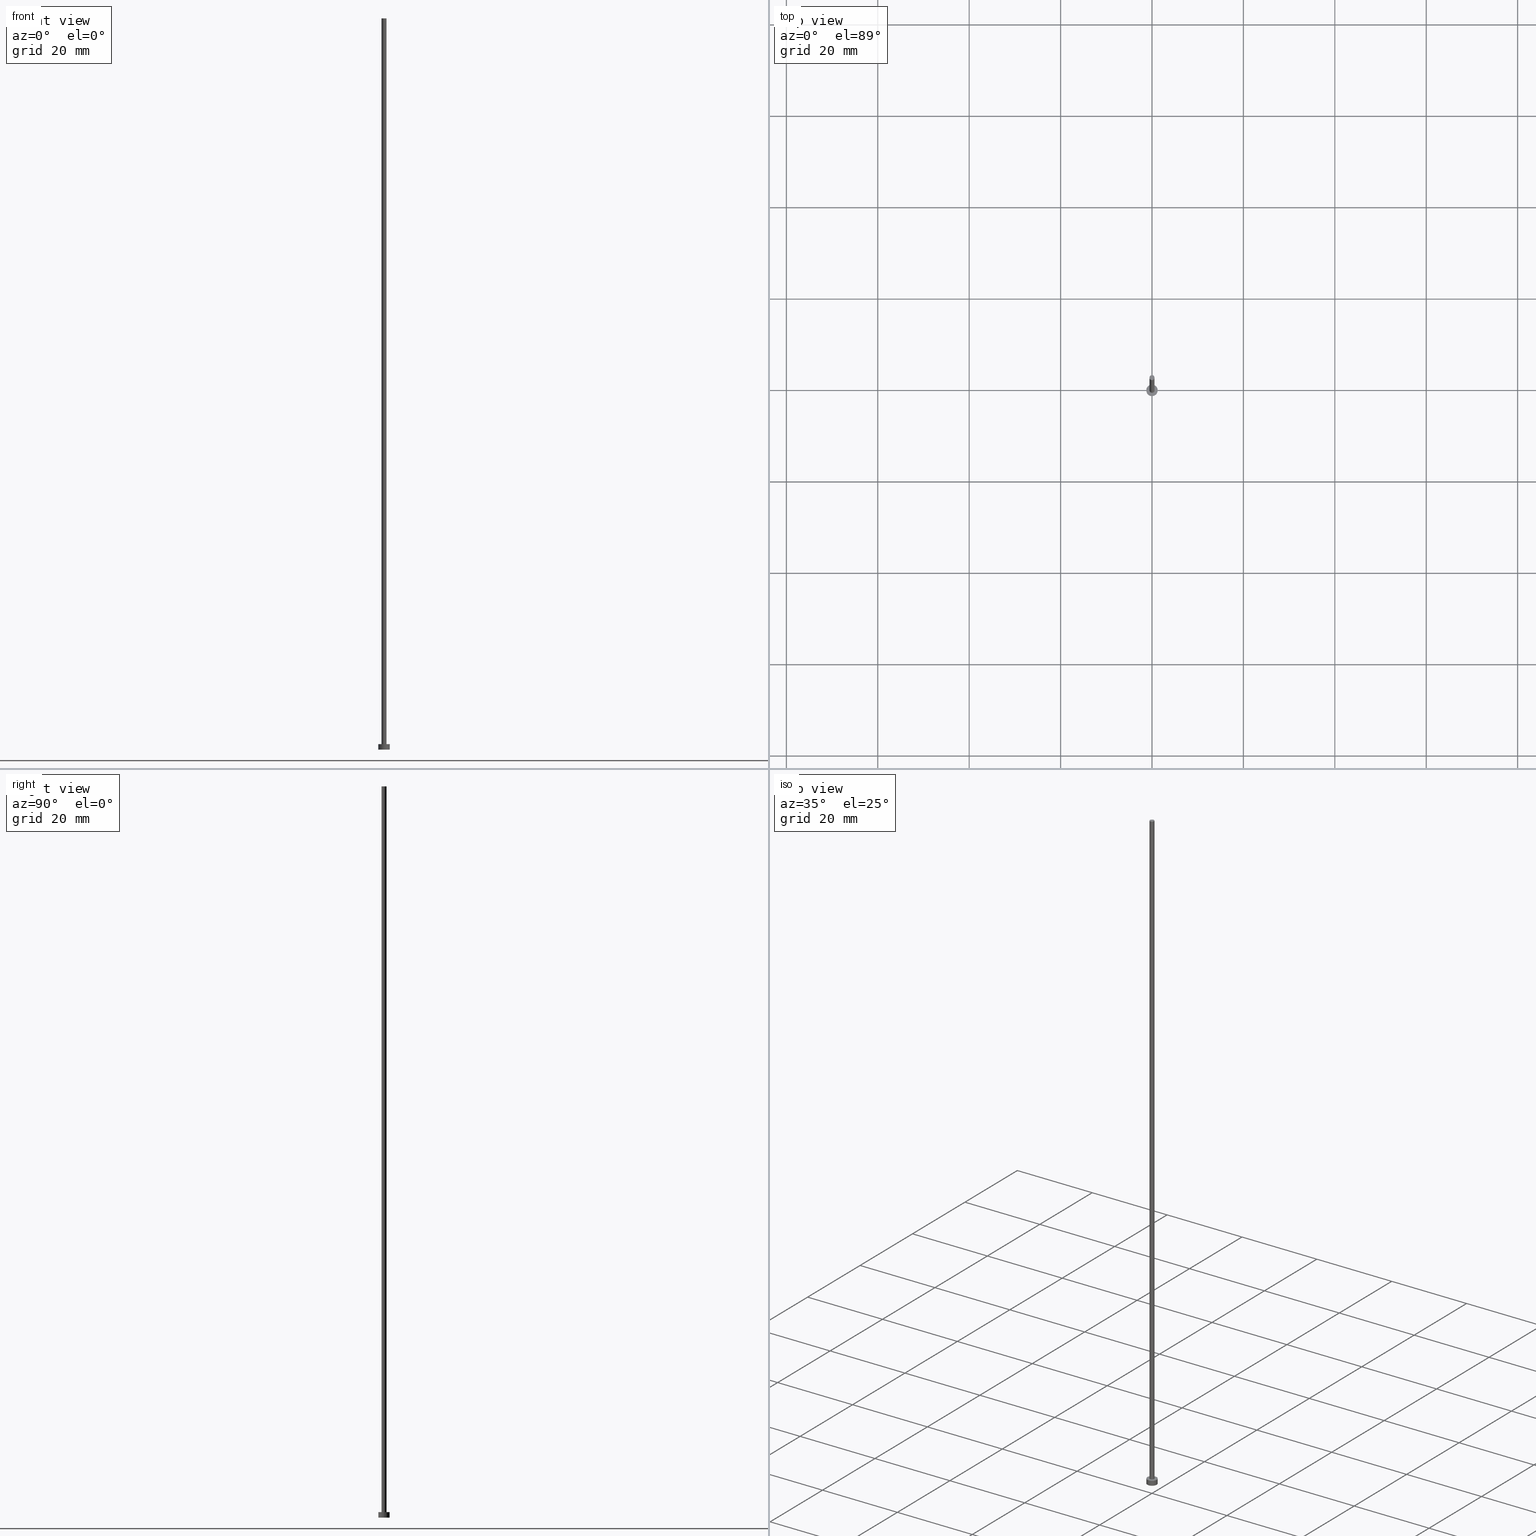
[diagram: canonical four-view strip — front | top / right | iso, engineering-drawing reading convention]
A machine part, canonical four-view strip (front | top / right | iso — engineering-drawing reading convention). The complete STEP part file that produces these views, byte-faithful:
ISO-10303-21;
HEADER;
FILE_DESCRIPTION (( 'STEP AP203' ),
    '1' );
FILE_NAME ('1b36.STEP',
    '2023-02-13T17:27:34',
    ( '' ),
    ( '' ),
    'SwSTEP 2.0',
    'SolidWorks 2019',
    '' );
FILE_SCHEMA (( 'CONFIG_CONTROL_DESIGN' ));
ENDSEC;

DATA;
#1 = EDGE_LOOP ( 'NONE', ( #121, #93, #18, #174 ) ) ;
#2 = DIRECTION ( 'NONE',  ( -1.000000000000000000, 0.000000000000000000, 0.000000000000000000 ) ) ;
#3 = EDGE_CURVE ( 'NONE', #80, #233, #112, .T. ) ;
#4 = CC_DESIGN_DATE_AND_TIME_ASSIGNMENT ( #83, #44, ( #178 ) ) ;
#5 = PERSON_AND_ORGANIZATION ( #51, #86 ) ;
#6 = CC_DESIGN_APPROVAL ( #103, ( #115 ) ) ;
#7 = VECTOR ( 'NONE', #156, 1000.000000000000000 ) ;
#8 = EDGE_CURVE ( 'NONE', #227, #137, #212, .T. ) ;
#9 = CC_DESIGN_PERSON_AND_ORGANIZATION_ASSIGNMENT ( #113, #55, ( #115 ) ) ;
#10 = CARTESIAN_POINT ( 'NONE',  ( -1.250000000000000000, 0.000000000000000000, 1.199999999999999956 ) ) ;
#11 = DATE_AND_TIME ( #150, #77 ) ;
#12 = CC_DESIGN_SECURITY_CLASSIFICATION ( #146, ( #115 ) ) ;
#13 = DIRECTION ( 'NONE',  ( -0.000000000000000000, -0.000000000000000000, -1.000000000000000000 ) ) ;
#14 =( NAMED_UNIT ( * ) PLANE_ANGLE_UNIT ( ) SI_UNIT ( $, .RADIAN. ) );
#15 = PERSON_AND_ORGANIZATION ( #51, #86 ) ;
#16 = DIRECTION ( 'NONE',  ( 0.000000000000000000, 0.000000000000000000, 1.000000000000000000 ) ) ;
#17 = AXIS2_PLACEMENT_3D ( 'NONE', #31, #222, #242 ) ;
#18 = ORIENTED_EDGE ( 'NONE', *, *, #243, .T. ) ;
#19 = COORDINATED_UNIVERSAL_TIME_OFFSET ( 1, 0, .AHEAD. ) ;
#20 = DIRECTION ( 'NONE',  ( 1.000000000000000000, 0.000000000000000000, 0.000000000000000000 ) ) ;
#21 = DIRECTION ( 'NONE',  ( 1.000000000000000000, 0.000000000000000000, 0.000000000000000000 ) ) ;
#22 = ADVANCED_FACE ( 'NONE', ( #134, #102 ), #41, .T. ) ;
#23 = CARTESIAN_POINT ( 'NONE',  ( 0.000000000000000000, 0.000000000000000000, 1.199999999999999956 ) ) ;
#24 = COORDINATED_UNIVERSAL_TIME_OFFSET ( 1, 0, .AHEAD. ) ;
#25 =( GEOMETRIC_REPRESENTATION_CONTEXT ( 3 ) GLOBAL_UNCERTAINTY_ASSIGNED_CONTEXT ( ( #195 ) ) GLOBAL_UNIT_ASSIGNED_CONTEXT ( ( #208, #14, #187 ) ) REPRESENTATION_CONTEXT ( 'NONE', 'WORKASPACE' ) );
#26 = ORIENTED_EDGE ( 'NONE', *, *, #200, .F. ) ;
#27 = DIRECTION ( 'NONE',  ( -1.000000000000000000, 0.000000000000000000, 0.000000000000000000 ) ) ;
#28 = AXIS2_PLACEMENT_3D ( 'NONE', #96, #215, #194 ) ;
#29 = PLANE ( 'NONE',  #165 ) ;
#30 = PRODUCT_DEFINITION_SHAPE ( 'NONE', 'NONE',  #178 ) ;
#31 = CARTESIAN_POINT ( 'NONE',  ( 0.000000000000000000, 0.000000000000000000, 160.0000000000000284 ) ) ;
#32 = CARTESIAN_POINT ( 'NONE',  ( 0.000000000000000000, 0.000000000000000000, 1.199999999999999956 ) ) ;
#33 = DIRECTION ( 'NONE',  ( -0.000000000000000000, -0.000000000000000000, -1.000000000000000000 ) ) ;
#34 = EDGE_LOOP ( 'NONE', ( #159, #114 ) ) ;
#35 = ADVANCED_FACE ( 'NONE', ( #84 ), #98, .T. ) ;
#36 = PERSON_AND_ORGANIZATION ( #51, #86 ) ;
#37 = CC_DESIGN_DATE_AND_TIME_ASSIGNMENT ( #11, #130, ( #146 ) ) ;
#38 = DIRECTION ( 'NONE',  ( 0.000000000000000000, 0.000000000000000000, 1.000000000000000000 ) ) ;
#39 = APPROVAL_ROLE ( '' ) ;
#40 = EDGE_CURVE ( 'NONE', #173, #227, #203, .T. ) ;
#41 = PLANE ( 'NONE',  #28 ) ;
#42 = MANIFOLD_SOLID_BREP ( 'P�idat vysunut�m3', #179 ) ;
#43 = ORIENTED_EDGE ( 'NONE', *, *, #3, .T. ) ;
#44 = DATE_TIME_ROLE ( 'creation_date' ) ;
#45 = AXIS2_PLACEMENT_3D ( 'NONE', #149, #224, #56 ) ;
#46 = EDGE_LOOP ( 'NONE', ( #65, #79, #61, #251 ) ) ;
#47 = DIRECTION ( 'NONE',  ( -0.000000000000000000, -0.000000000000000000, -1.000000000000000000 ) ) ;
#48 = APPLICATION_CONTEXT ( 'configuration controlled 3d designs of mechanical parts and assemblies' ) ;
#49 = VECTOR ( 'NONE', #33, 1000.000000000000000 ) ;
#50 = CC_DESIGN_APPROVAL ( #217, ( #146 ) ) ;
#51 = PERSON ( 'NEUR�EN�', 'NEUR�EN�', 'NEUR�EN�', ('NEUR�EN�'), ('NEUR�EN�'), ('NEUR�EN�') ) ;
#52 = CC_DESIGN_PERSON_AND_ORGANIZATION_ASSIGNMENT ( #160, #237, ( #129 ) ) ;
#53 = LINE ( 'NONE', #10, #214 ) ;
#54 = CC_DESIGN_PERSON_AND_ORGANIZATION_ASSIGNMENT ( #15, #190, ( #146 ) ) ;
#55 = PERSON_AND_ORGANIZATION_ROLE ( 'design_supplier' ) ;
#56 = DIRECTION ( 'NONE',  ( 1.000000000000000000, 0.000000000000000000, 0.000000000000000000 ) ) ;
#57 = AXIS2_PLACEMENT_3D ( 'NONE', #152, #16, #209 ) ;
#58 = AXIS2_PLACEMENT_3D ( 'NONE', #211, #66, #119 ) ;
#59 = EDGE_LOOP ( 'NONE', ( #197, #136 ) ) ;
#60 = PERSON_AND_ORGANIZATION_ROLE ( 'creator' ) ;
#61 = ORIENTED_EDGE ( 'NONE', *, *, #8, .T. ) ;
#62 = DESIGN_CONTEXT ( 'detailed design', #226, 'design' ) ;
#63 = CYLINDRICAL_SURFACE ( 'NONE', #88, 0.5500000000000000444 ) ;
#64 = ORIENTED_EDGE ( 'NONE', *, *, #109, .T. ) ;
#65 = ORIENTED_EDGE ( 'NONE', *, *, #225, .F. ) ;
#66 = DIRECTION ( 'NONE',  ( 0.000000000000000000, 0.000000000000000000, 1.000000000000000000 ) ) ;
#67 = ORIENTED_EDGE ( 'NONE', *, *, #69, .F. ) ;
#68 = CALENDAR_DATE ( 2023, 13, 2 ) ;
#69 = EDGE_CURVE ( 'NONE', #199, #245, #90, .T. ) ;
#70 = CYLINDRICAL_SURFACE ( 'NONE', #89, 1.250000000000000000 ) ;
#71 = ADVANCED_FACE ( 'NONE', ( #235 ), #70, .T. ) ;
#72 = CARTESIAN_POINT ( 'NONE',  ( 0.000000000000000000, 0.000000000000000000, 1.199999999999999956 ) ) ;
#73 = CARTESIAN_POINT ( 'NONE',  ( -0.5500000000000000444, 0.000000000000000000, 160.0000000000000284 ) ) ;
#74 = SECURITY_CLASSIFICATION_LEVEL ( 'unclassified' ) ;
#75 = CARTESIAN_POINT ( 'NONE',  ( -1.250000000000000000, 0.000000000000000000, 0.000000000000000000 ) ) ;
#76 = ADVANCED_FACE ( 'NONE', ( #104 ), #81, .T. ) ;
#77 = LOCAL_TIME ( 18, 27, 34.00000000000000000, #250 ) ;
#78 = DATE_AND_TIME ( #252, #166 ) ;
#79 = ORIENTED_EDGE ( 'NONE', *, *, #110, .F. ) ;
#80 = VERTEX_POINT ( 'NONE', #116 ) ;
#81 = PLANE ( 'NONE',  #145 ) ;
#82 = CYLINDRICAL_SURFACE ( 'NONE', #170, 0.5500000000000000444 ) ;
#83 = DATE_AND_TIME ( #124, #220 ) ;
#84 = FACE_OUTER_BOUND ( 'NONE', #95, .T. ) ;
#85 = COORDINATED_UNIVERSAL_TIME_OFFSET ( 1, 0, .AHEAD. ) ;
#86 = ORGANIZATION ( 'NEUR�EN�', 'NEUR�EN�', '' ) ;
#87 = ADVANCED_FACE ( 'NONE', ( #193 ), #82, .T. ) ;
#88 = AXIS2_PLACEMENT_3D ( 'NONE', #135, #13, #91 ) ;
#89 = AXIS2_PLACEMENT_3D ( 'NONE', #141, #47, #27 ) ;
#90 = CIRCLE ( 'NONE', #230, 1.250000000000000000 ) ;
#91 = DIRECTION ( 'NONE',  ( -1.000000000000000000, 0.000000000000000000, 0.000000000000000000 ) ) ;
#92 = LINE ( 'NONE', #191, #241 ) ;
#93 = ORIENTED_EDGE ( 'NONE', *, *, #225, .T. ) ;
#94 = CARTESIAN_POINT ( 'NONE',  ( 1.250000000000000000, 1.530808498934191571E-16, 0.000000000000000000 ) ) ;
#95 = EDGE_LOOP ( 'NONE', ( #26, #189, #64, #154 ) ) ;
#96 = CARTESIAN_POINT ( 'NONE',  ( 0.000000000000000000, 0.000000000000000000, 1.199999999999999956 ) ) ;
#97 = PERSON_AND_ORGANIZATION_ROLE ( 'creator' ) ;
#98 = CYLINDRICAL_SURFACE ( 'NONE', #221, 1.250000000000000000 ) ;
#99 = AXIS2_PLACEMENT_3D ( 'NONE', #23, #139, #20 ) ;
#100 = EDGE_LOOP ( 'NONE', ( #249, #123, #118, #253 ) ) ;
#101 = DIRECTION ( 'NONE',  ( 0.000000000000000000, 0.000000000000000000, 1.000000000000000000 ) ) ;
#102 = FACE_OUTER_BOUND ( 'NONE', #192, .T. ) ;
#103 = APPROVAL ( #158, 'NEUR�EN�' ) ;
#104 = FACE_OUTER_BOUND ( 'NONE', #59, .T. ) ;
#105 = CIRCLE ( 'NONE', #57, 1.250000000000000000 ) ;
#106 = AXIS2_PLACEMENT_3D ( 'NONE', #32, #247, #206 ) ;
#107 = DIRECTION ( 'NONE',  ( 1.000000000000000000, 0.000000000000000000, -0.000000000000000000 ) ) ;
#108 = DIRECTION ( 'NONE',  ( 0.000000000000000000, 0.000000000000000000, 1.000000000000000000 ) ) ;
#109 = EDGE_CURVE ( 'NONE', #80, #245, #53, .T. ) ;
#110 = EDGE_CURVE ( 'NONE', #227, #173, #126, .T. ) ;
#111 = CIRCLE ( 'NONE', #106, 0.5500000000000000444 ) ;
#112 = CIRCLE ( 'NONE', #99, 1.250000000000000000 ) ;
#113 = PERSON_AND_ORGANIZATION ( #51, #86 ) ;
#114 = ORIENTED_EDGE ( 'NONE', *, *, #243, .F. ) ;
#115 = PRODUCT_DEFINITION_FORMATION_WITH_SPECIFIED_SOURCE ( 'LIBOVOLN�', '', #129, .NOT_KNOWN. ) ;
#116 = CARTESIAN_POINT ( 'NONE',  ( -1.250000000000000000, 0.000000000000000000, 1.199999999999999956 ) ) ;
#117 = DATE_AND_TIME ( #234, #155 ) ;
#118 = ORIENTED_EDGE ( 'NONE', *, *, #69, .T. ) ;
#119 = DIRECTION ( 'NONE',  ( 1.000000000000000000, 0.000000000000000000, 0.000000000000000000 ) ) ;
#120 = APPROVAL_PERSON_ORGANIZATION ( #36, #217, #186 ) ;
#121 = ORIENTED_EDGE ( 'NONE', *, *, #40, .F. ) ;
#122 = APPLICATION_PROTOCOL_DEFINITION ( 'international standard', 'config_control_design', 1994, #48 ) ;
#123 = ORIENTED_EDGE ( 'NONE', *, *, #200, .T. ) ;
#124 = CALENDAR_DATE ( 2023, 13, 2 ) ;
#125 = DIRECTION ( 'NONE',  ( -1.000000000000000000, 0.000000000000000000, 0.000000000000000000 ) ) ;
#126 = CIRCLE ( 'NONE', #17, 0.5500000000000000444 ) ;
#127 = CARTESIAN_POINT ( 'NONE',  ( 0.000000000000000000, 0.000000000000000000, 160.0000000000000284 ) ) ;
#128 = DIRECTION ( 'NONE',  ( 0.000000000000000000, 0.000000000000000000, 1.000000000000000000 ) ) ;
#129 = PRODUCT ( '1b36', '1b36', '', ( #142 ) ) ;
#130 = DATE_TIME_ROLE ( 'classification_date' ) ;
#131 = AXIS2_PLACEMENT_3D ( 'NONE', #72, #108, #168 ) ;
#132 = FACE_OUTER_BOUND ( 'NONE', #46, .T. ) ;
#133 = APPROVAL ( #175, 'NEUR�EN�' ) ;
#134 = FACE_BOUND ( 'NONE', #34, .T. ) ;
#135 = CARTESIAN_POINT ( 'NONE',  ( 0.000000000000000000, 0.000000000000000000, 160.0000000000000284 ) ) ;
#136 = ORIENTED_EDGE ( 'NONE', *, *, #40, .T. ) ;
#137 = VERTEX_POINT ( 'NONE', #240 ) ;
#138 = APPROVAL_DATE_TIME ( #117, #133 ) ;
#139 = DIRECTION ( 'NONE',  ( 0.000000000000000000, 0.000000000000000000, 1.000000000000000000 ) ) ;
#140 = PERSON_AND_ORGANIZATION ( #51, #86 ) ;
#141 = CARTESIAN_POINT ( 'NONE',  ( 0.000000000000000000, 0.000000000000000000, 1.199999999999999956 ) ) ;
#142 = MECHANICAL_CONTEXT ( 'NONE', #48, 'mechanical' ) ;
#143 = PRODUCT_RELATED_PRODUCT_CATEGORY ( 'detail', '', ( #129 ) ) ;
#144 = APPROVAL_PERSON_ORGANIZATION ( #202, #103, #231 ) ;
#145 = AXIS2_PLACEMENT_3D ( 'NONE', #153, #38, #254 ) ;
#146 = SECURITY_CLASSIFICATION ( '', '', #74 ) ;
#147 = DIRECTION ( 'NONE',  ( -0.000000000000000000, -0.000000000000000000, -1.000000000000000000 ) ) ;
#148 = CC_DESIGN_PERSON_AND_ORGANIZATION_ASSIGNMENT ( #207, #60, ( #115 ) ) ;
#149 = CARTESIAN_POINT ( 'NONE',  ( 0.000000000000000000, 0.000000000000000000, 1.199999999999999956 ) ) ;
#150 = CALENDAR_DATE ( 2023, 13, 2 ) ;
#151 = CARTESIAN_POINT ( 'NONE',  ( 1.250000000000000000, 1.530808498934191571E-16, 1.199999999999999956 ) ) ;
#152 = CARTESIAN_POINT ( 'NONE',  ( 0.000000000000000000, 0.000000000000000000, 0.000000000000000000 ) ) ;
#153 = CARTESIAN_POINT ( 'NONE',  ( 0.000000000000000000, 0.000000000000000000, 160.0000000000000284 ) ) ;
#154 = ORIENTED_EDGE ( 'NONE', *, *, #181, .T. ) ;
#155 = LOCAL_TIME ( 18, 27, 34.00000000000000000, #24 ) ;
#156 = DIRECTION ( 'NONE',  ( -0.000000000000000000, -0.000000000000000000, -1.000000000000000000 ) ) ;
#157 = EDGE_CURVE ( 'NONE', #233, #80, #163, .T. ) ;
#158 = APPROVAL_STATUS ( 'not_yet_approved' ) ;
#159 = ORIENTED_EDGE ( 'NONE', *, *, #239, .F. ) ;
#160 = PERSON_AND_ORGANIZATION ( #51, #86 ) ;
#161 = CARTESIAN_POINT ( 'NONE',  ( -0.5500000000000000444, 0.000000000000000000, 160.0000000000000284 ) ) ;
#162 = CARTESIAN_POINT ( 'NONE',  ( 0.000000000000000000, 0.000000000000000000, 0.000000000000000000 ) ) ;
#163 = CIRCLE ( 'NONE', #131, 1.250000000000000000 ) ;
#164 = CARTESIAN_POINT ( 'NONE',  ( 0.5500000000000000444, 6.735557395310442516E-17, 1.199999999999999956 ) ) ;
#165 = AXIS2_PLACEMENT_3D ( 'NONE', #204, #128, #107 ) ;
#166 = LOCAL_TIME ( 18, 27, 34.00000000000000000, #19 ) ;
#167 = ADVANCED_BREP_SHAPE_REPRESENTATION ( '1b36', ( #42, #255 ), #25 ) ;
#168 = DIRECTION ( 'NONE',  ( 1.000000000000000000, 0.000000000000000000, 0.000000000000000000 ) ) ;
#169 = LINE ( 'NONE', #244, #49 ) ;
#170 = AXIS2_PLACEMENT_3D ( 'NONE', #127, #180, #125 ) ;
#171 = VERTEX_POINT ( 'NONE', #164 ) ;
#172 = ADVANCED_FACE ( 'NONE', ( #238 ), #29, .F. ) ;
#173 = VERTEX_POINT ( 'NONE', #182 ) ;
#174 = ORIENTED_EDGE ( 'NONE', *, *, #8, .F. ) ;
#175 = APPROVAL_STATUS ( 'not_yet_approved' ) ;
#176 = DIRECTION ( 'NONE',  ( -0.000000000000000000, -0.000000000000000000, -1.000000000000000000 ) ) ;
#177 = CARTESIAN_POINT ( 'NONE',  ( 0.000000000000000000, 0.000000000000000000, 0.000000000000000000 ) ) ;
#178 = PRODUCT_DEFINITION ( 'NEZN�M�', '', #115, #62 ) ;
#179 = CLOSED_SHELL ( 'NONE', ( #87, #71, #35, #22, #172, #219, #76 ) ) ;
#180 = DIRECTION ( 'NONE',  ( -0.000000000000000000, -0.000000000000000000, -1.000000000000000000 ) ) ;
#181 = EDGE_CURVE ( 'NONE', #245, #199, #105, .T. ) ;
#182 = CARTESIAN_POINT ( 'NONE',  ( 0.5500000000000000444, 6.735557395310442516E-17, 160.0000000000000284 ) ) ;
#183 = LOCAL_TIME ( 18, 27, 34.00000000000000000, #85 ) ;
#184 = CC_DESIGN_PERSON_AND_ORGANIZATION_ASSIGNMENT ( #5, #97, ( #178 ) ) ;
#185 = CIRCLE ( 'NONE', #45, 0.5500000000000000444 ) ;
#186 = APPROVAL_ROLE ( '' ) ;
#187 =( NAMED_UNIT ( * ) SI_UNIT ( $, .STERADIAN. ) SOLID_ANGLE_UNIT ( ) );
#188 = CC_DESIGN_APPROVAL ( #133, ( #178 ) ) ;
#189 = ORIENTED_EDGE ( 'NONE', *, *, #3, .F. ) ;
#190 = PERSON_AND_ORGANIZATION_ROLE ( 'classification_officer' ) ;
#191 = CARTESIAN_POINT ( 'NONE',  ( 1.250000000000000000, 1.530808498934191571E-16, 1.199999999999999956 ) ) ;
#192 = EDGE_LOOP ( 'NONE', ( #43, #232 ) ) ;
#193 = FACE_OUTER_BOUND ( 'NONE', #1, .T. ) ;
#194 = DIRECTION ( 'NONE',  ( 1.000000000000000000, 0.000000000000000000, -0.000000000000000000 ) ) ;
#195 = UNCERTAINTY_MEASURE_WITH_UNIT (LENGTH_MEASURE( 1.000000000000000082E-05 ), #208, 'distance_accuracy_value', 'NONE');
#196 = APPLICATION_PROTOCOL_DEFINITION ( 'international standard', 'config_control_design', 1994, #226 ) ;
#197 = ORIENTED_EDGE ( 'NONE', *, *, #110, .T. ) ;
#198 = EDGE_LOOP ( 'NONE', ( #210, #67 ) ) ;
#199 = VERTEX_POINT ( 'NONE', #94 ) ;
#200 = EDGE_CURVE ( 'NONE', #233, #199, #92, .T. ) ;
#201 = DIRECTION ( 'NONE',  ( 1.000000000000000000, 0.000000000000000000, 0.000000000000000000 ) ) ;
#202 = PERSON_AND_ORGANIZATION ( #51, #86 ) ;
#203 = CIRCLE ( 'NONE', #58, 0.5500000000000000444 ) ;
#204 = CARTESIAN_POINT ( 'NONE',  ( 0.000000000000000000, 0.000000000000000000, 0.000000000000000000 ) ) ;
#205 = APPROVAL_STATUS ( 'not_yet_approved' ) ;
#206 = DIRECTION ( 'NONE',  ( 1.000000000000000000, 0.000000000000000000, 0.000000000000000000 ) ) ;
#207 = PERSON_AND_ORGANIZATION ( #51, #86 ) ;
#208 =( LENGTH_UNIT ( ) NAMED_UNIT ( * ) SI_UNIT ( .MILLI., .METRE. ) );
#209 = DIRECTION ( 'NONE',  ( 1.000000000000000000, 0.000000000000000000, 0.000000000000000000 ) ) ;
#210 = ORIENTED_EDGE ( 'NONE', *, *, #181, .F. ) ;
#211 = CARTESIAN_POINT ( 'NONE',  ( 0.000000000000000000, 0.000000000000000000, 160.0000000000000284 ) ) ;
#212 = LINE ( 'NONE', #161, #7 ) ;
#213 = COORDINATED_UNIVERSAL_TIME_OFFSET ( 1, 0, .AHEAD. ) ;
#214 = VECTOR ( 'NONE', #147, 1000.000000000000000 ) ;
#215 = DIRECTION ( 'NONE',  ( 0.000000000000000000, 0.000000000000000000, 1.000000000000000000 ) ) ;
#216 = DATE_AND_TIME ( #68, #183 ) ;
#217 = APPROVAL ( #205, 'NEUR�EN�' ) ;
#218 = CARTESIAN_POINT ( 'NONE',  ( 0.000000000000000000, 0.000000000000000000, 1.199999999999999956 ) ) ;
#219 = ADVANCED_FACE ( 'NONE', ( #132 ), #63, .T. ) ;
#220 = LOCAL_TIME ( 18, 27, 34.00000000000000000, #213 ) ;
#221 = AXIS2_PLACEMENT_3D ( 'NONE', #218, #176, #2 ) ;
#222 = DIRECTION ( 'NONE',  ( 0.000000000000000000, 0.000000000000000000, 1.000000000000000000 ) ) ;
#223 = APPROVAL_DATE_TIME ( #78, #217 ) ;
#224 = DIRECTION ( 'NONE',  ( 0.000000000000000000, 0.000000000000000000, 1.000000000000000000 ) ) ;
#225 = EDGE_CURVE ( 'NONE', #173, #171, #169, .T. ) ;
#226 = APPLICATION_CONTEXT ( 'configuration controlled 3d designs of mechanical parts and assemblies' ) ;
#227 = VERTEX_POINT ( 'NONE', #73 ) ;
#228 = SHAPE_DEFINITION_REPRESENTATION ( #30, #167 ) ;
#229 = DIRECTION ( 'NONE',  ( -0.000000000000000000, -0.000000000000000000, -1.000000000000000000 ) ) ;
#230 = AXIS2_PLACEMENT_3D ( 'NONE', #162, #101, #201 ) ;
#231 = APPROVAL_ROLE ( '' ) ;
#232 = ORIENTED_EDGE ( 'NONE', *, *, #157, .T. ) ;
#233 = VERTEX_POINT ( 'NONE', #151 ) ;
#234 = CALENDAR_DATE ( 2023, 13, 2 ) ;
#235 = FACE_OUTER_BOUND ( 'NONE', #100, .T. ) ;
#236 = DIRECTION ( 'NONE',  ( 0.000000000000000000, 0.000000000000000000, 1.000000000000000000 ) ) ;
#237 = PERSON_AND_ORGANIZATION_ROLE ( 'design_owner' ) ;
#238 = FACE_OUTER_BOUND ( 'NONE', #198, .T. ) ;
#239 = EDGE_CURVE ( 'NONE', #137, #171, #185, .T. ) ;
#240 = CARTESIAN_POINT ( 'NONE',  ( -0.5500000000000000444, 0.000000000000000000, 1.199999999999999956 ) ) ;
#241 = VECTOR ( 'NONE', #229, 1000.000000000000000 ) ;
#242 = DIRECTION ( 'NONE',  ( 1.000000000000000000, 0.000000000000000000, 0.000000000000000000 ) ) ;
#243 = EDGE_CURVE ( 'NONE', #171, #137, #111, .T. ) ;
#244 = CARTESIAN_POINT ( 'NONE',  ( 0.5500000000000000444, 6.735557395310442516E-17, 160.0000000000000284 ) ) ;
#245 = VERTEX_POINT ( 'NONE', #75 ) ;
#246 = APPROVAL_DATE_TIME ( #216, #103 ) ;
#247 = DIRECTION ( 'NONE',  ( 0.000000000000000000, 0.000000000000000000, 1.000000000000000000 ) ) ;
#248 = APPROVAL_PERSON_ORGANIZATION ( #140, #133, #39 ) ;
#249 = ORIENTED_EDGE ( 'NONE', *, *, #157, .F. ) ;
#250 = COORDINATED_UNIVERSAL_TIME_OFFSET ( 1, 0, .AHEAD. ) ;
#251 = ORIENTED_EDGE ( 'NONE', *, *, #239, .T. ) ;
#252 = CALENDAR_DATE ( 2023, 13, 2 ) ;
#253 = ORIENTED_EDGE ( 'NONE', *, *, #109, .F. ) ;
#254 = DIRECTION ( 'NONE',  ( 1.000000000000000000, 0.000000000000000000, -0.000000000000000000 ) ) ;
#255 = AXIS2_PLACEMENT_3D ( 'NONE', #177, #236, #21 ) ;
ENDSEC;
END-ISO-10303-21;
